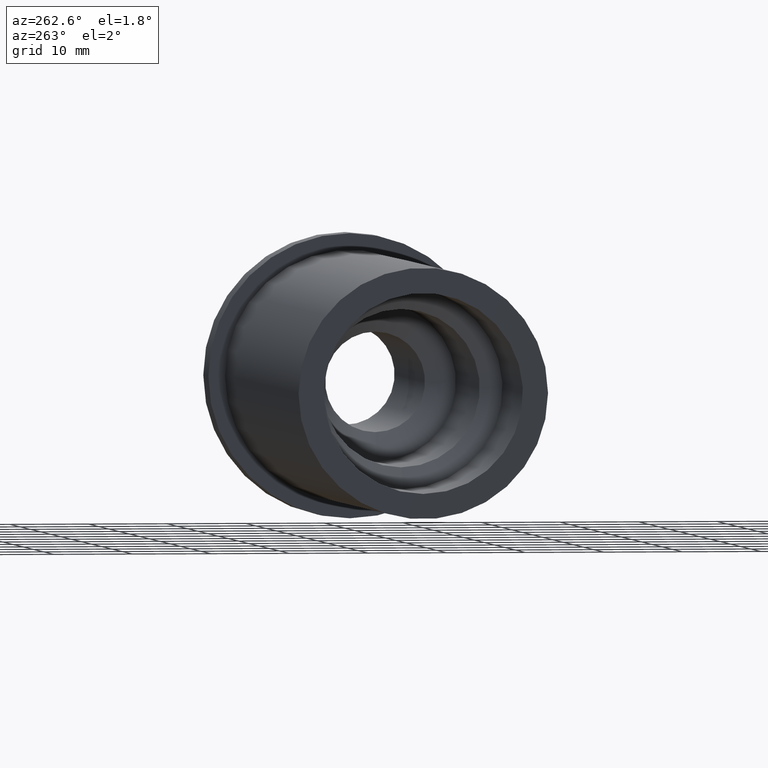
[diagram: clean part render]
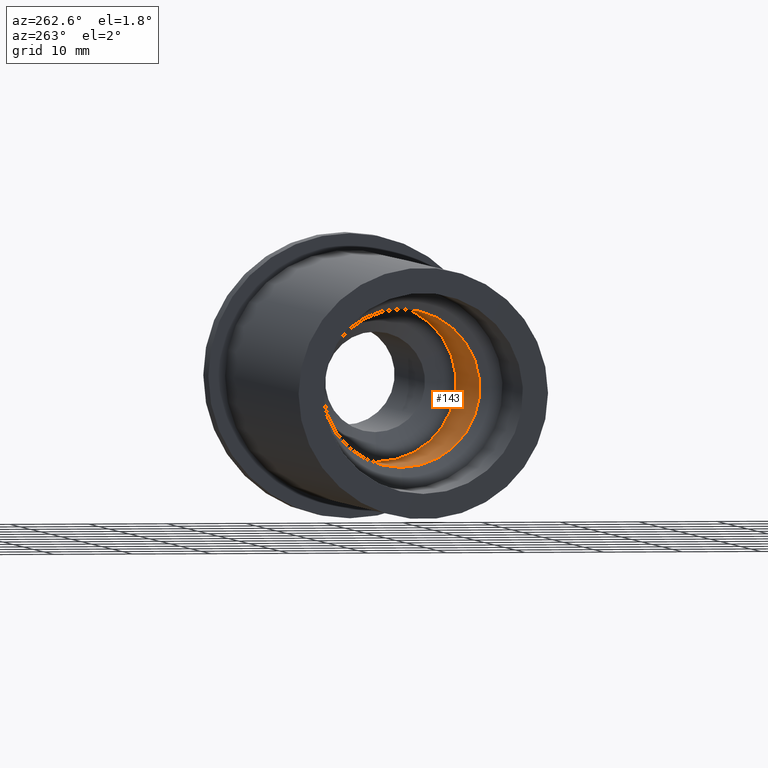
[diagram: same view with one face highlighted and labeled with its STEP entity id]
A machine part, auxiliary view. The second image highlights one B-rep face of the part: STEP entity #143.
In plain terms, the highlighted cylindrical surface (bore or boss wall) has radius 10 mm, axis along (-1, 0, 0).
Its self-contained STEP definition (entity closure, byte-faithful):
#25=FACE_OUTER_BOUND('',#35,.T.);
#35=EDGE_LOOP('',(#110,#111,#112,#113));
#48=LINE('',#262,#55);
#55=VECTOR('',#215,10.);
#63=CIRCLE('',#179,10.);
#64=CIRCLE('',#181,10.);
#74=VERTEX_POINT('',#256);
#75=VERTEX_POINT('',#260);
#86=EDGE_CURVE('',#74,#74,#63,.T.);
#88=EDGE_CURVE('',#75,#75,#64,.T.);
#89=EDGE_CURVE('',#75,#74,#48,.T.);
#110=ORIENTED_EDGE('',*,*,#88,.F.);
#111=ORIENTED_EDGE('',*,*,#89,.T.);
#112=ORIENTED_EDGE('',*,*,#86,.F.);
#113=ORIENTED_EDGE('',*,*,#89,.F.);
#137=CYLINDRICAL_SURFACE('',#180,10.);
#143=ADVANCED_FACE('',(#25),#137,.F.);
#179=AXIS2_PLACEMENT_3D('',#257,#208,#209);
#180=AXIS2_PLACEMENT_3D('',#259,#211,#212);
#181=AXIS2_PLACEMENT_3D('',#261,#213,#214);
#208=DIRECTION('center_axis',(-1.,0.,0.));
#209=DIRECTION('ref_axis',(0.,0.,1.));
#211=DIRECTION('center_axis',(-1.,0.,0.));
#212=DIRECTION('ref_axis',(0.,0.,1.));
#213=DIRECTION('center_axis',(1.,0.,0.));
#214=DIRECTION('ref_axis',(0.,0.,1.));
#215=DIRECTION('',(1.,0.,0.));
#256=CARTESIAN_POINT('',(-32.,-1.22464679914735E-15,-10.));
#257=CARTESIAN_POINT('Origin',(-32.,0.,0.));
#259=CARTESIAN_POINT('Origin',(-54.5,0.,0.));
#260=CARTESIAN_POINT('',(-55.3848259691314,1.22464679914735E-15,-10.));
#261=CARTESIAN_POINT('Origin',(-55.3848259691314,0.,0.));
#262=CARTESIAN_POINT('',(-54.5,-1.22464679914735E-15,-10.));